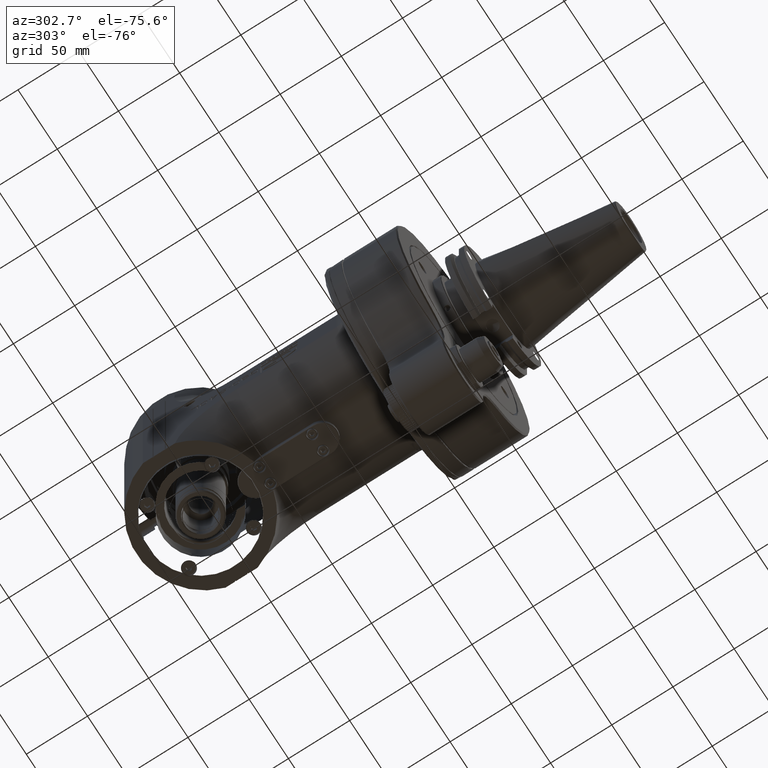
[diagram: clean part render]
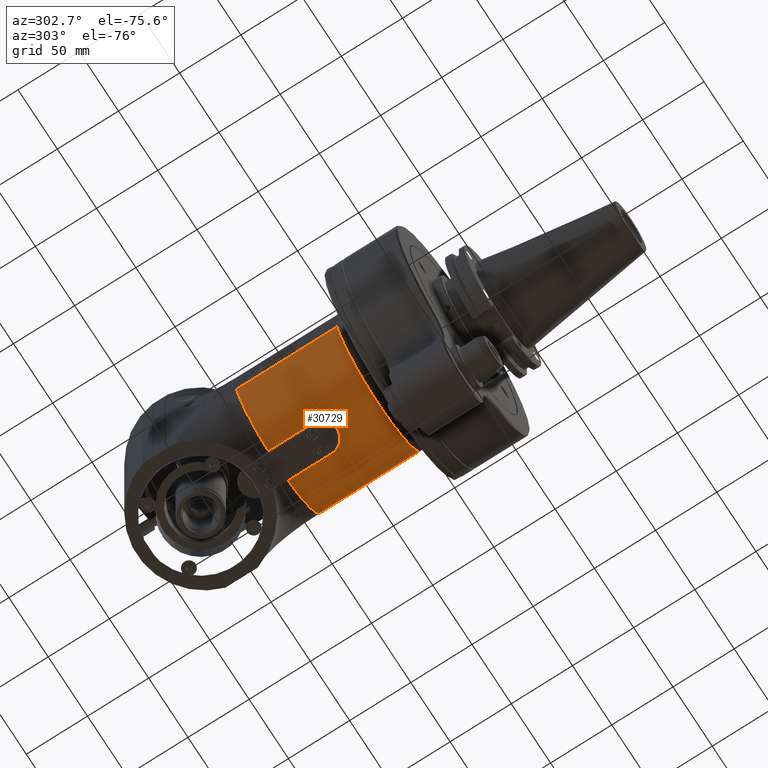
[diagram: same view with one face highlighted and labeled with its STEP entity id]
A machine part, auxiliary view. The second image highlights one B-rep face of the part: STEP entity #30729.
In plain terms, the highlighted cylindrical surface (partial cylindrical patch) has radius 55 mm, axis along (0, 1, -0).
Its self-contained STEP definition (entity closure, byte-faithful):
#329=B_SPLINE_CURVE_WITH_KNOTS('',3,(#46883,#46884,#46885,#46886,#46887,
#46888,#46889,#46890,#46891,#46892,#46893,#46894,#46895,#46896,#46897,#46898,
#46899,#46900,#46901,#46902,#46903,#46904,#46905,#46906,#46907,#46908,#46909,
#46910,#46911,#46912,#46913,#46914,#46915,#46916,#46917,#46918,#46919,#46920,
#46921,#46922,#46923,#46924,#46925,#46926,#46927,#46928,#46929,#46930,#46931,
#46932,#46933,#46934,#46935,#46936,#46937,#46938,#46939,#46940,#46941,#46942,
#46943,#46944,#46945,#46946,#46947,#46948,#46949,#46950,#46951,#46952,#46953,
#46954,#46955,#46956,#46957,#46958,#46959,#46960,#46961,#46962,#46963,#46964,
#46965,#46966,#46967,#46968,#46969,#46970,#46971,#46972,#46973,#46974,#46975,
#46976,#46977,#46978,#46979,#46980,#46981,#46982,#46983,#46984,#46985,#46986,
#46987,#46988,#46989,#46990,#46991,#46992,#46993,#46994,#46995,#46996,#46997,
#46998,#46999,#47000,#47001,#47002,#47003,#47004,#47005,#47006,#47007,#47008,
#47009,#47010,#47011,#47012,#47013,#47014,#47015,#47016,#47017,#47018,#47019,
#47020,#47021,#47022,#47023,#47024,#47025,#47026,#47027,#47028,#47029,#47030,
#47031,#47032,#47033,#47034,#47035,#47036,#47037,#47038,#47039,#47040,#47041,
#47042,#47043,#47044,#47045,#47046,#47047,#47048,#47049,#47050,#47051,#47052,
#47053,#47054,#47055,#47056,#47057,#47058,#47059,#47060,#47061,#47062,#47063,
#47064,#47065,#47066,#47067,#47068,#47069,#47070,#47071,#47072,#47073,#47074,
#47075,#47076,#47077,#47078,#47079,#47080,#47081),.UNSPECIFIED.,.F.,.F.,
(4,3,3,3,3,3,3,3,3,3,3,3,3,3,3,3,3,3,3,3,3,3,3,3,3,3,3,3,3,3,3,3,3,3,3,
3,3,3,3,3,3,3,3,3,3,3,3,3,3,3,3,3,3,3,3,3,3,3,3,3,3,3,3,3,3,3,4),(0.,0.01515151515152,
0.03030303030303,0.04545454545455,0.06060606060606,0.07575757575758,0.09090909090909,
0.1060606060606,0.1212121212121,0.1363636363636,0.1515151515152,0.1666666666667,
0.1818181818182,0.1969696969697,0.2121212121212,0.2272727272727,0.2424242424242,
0.2575757575758,0.2727272727273,0.2878787878788,0.3030303030303,0.3181818181818,
0.3333333333333,0.3484848484848,0.3636363636364,0.3787878787879,0.3939393939394,
0.4090909090909,0.4242424242424,0.4393939393939,0.4545454545455,0.469696969697,
0.4848484848485,0.5,0.5151515151515,0.530303030303,0.5454545454545,0.5606060606061,
0.5757575757576,0.5909090909091,0.6060606060606,0.6212121212121,0.6363636363636,
0.6515151515152,0.6666666666667,0.6818181818182,0.6969696969697,0.7121212121212,
0.7272727272727,0.7424242424242,0.7575757575758,0.7727272727273,0.7878787878788,
0.8030303030303,0.8181818181818,0.8333333333333,0.8484848484848,0.8636363636364,
0.8787878787879,0.8939393939394,0.9090909090909,0.9242424242424,0.9393939393939,
0.9545454545455,0.969696969697,0.9848484848485,1.),.UNSPECIFIED.);
#671=CYLINDRICAL_SURFACE('',#32766,55.);
#1783=LINE('',#46328,#4694);
#2020=LINE('',#46857,#4931);
#2023=LINE('',#46874,#4934);
#2026=LINE('',#46882,#4937);
#4694=VECTOR('',#36356,82.);
#4931=VECTOR('',#36637,82.);
#4934=VECTOR('',#36660,36.5);
#4937=VECTOR('',#36667,36.5);
#7561=FACE_OUTER_BOUND('',#9415,.T.);
#9415=EDGE_LOOP('',(#21362,#21363,#21364,#21365,#21366,#21367,#21368,#21369));
#11420=CIRCLE('',#32764,55.);
#11421=CIRCLE('',#32767,55.);
#11422=CIRCLE('',#32768,55.);
#12834=VERTEX_POINT('',#46325);
#12835=VERTEX_POINT('',#46327);
#13067=VERTEX_POINT('',#46854);
#13068=VERTEX_POINT('',#46856);
#13070=VERTEX_POINT('',#46866);
#13072=VERTEX_POINT('',#46873);
#13074=VERTEX_POINT('',#46879);
#13075=VERTEX_POINT('',#46881);
#16012=EDGE_CURVE('',#12835,#12834,#1783,.T.);
#16258=EDGE_CURVE('',#13067,#13068,#2020,.T.);
#16265=EDGE_CURVE('',#13070,#13068,#11420,.T.);
#16266=EDGE_CURVE('',#13072,#13070,#2023,.T.);
#16269=EDGE_CURVE('',#12834,#13074,#11421,.T.);
#16270=EDGE_CURVE('',#13075,#13074,#2026,.T.);
#16271=EDGE_CURVE('',#13072,#13075,#329,.T.);
#16272=EDGE_CURVE('',#12835,#13067,#11422,.T.);
#21362=ORIENTED_EDGE('',*,*,#16269,.T.);
#21363=ORIENTED_EDGE('',*,*,#16270,.F.);
#21364=ORIENTED_EDGE('',*,*,#16271,.F.);
#21365=ORIENTED_EDGE('',*,*,#16266,.T.);
#21366=ORIENTED_EDGE('',*,*,#16265,.T.);
#21367=ORIENTED_EDGE('',*,*,#16258,.F.);
#21368=ORIENTED_EDGE('',*,*,#16272,.F.);
#21369=ORIENTED_EDGE('',*,*,#16012,.T.);
#30729=ADVANCED_FACE('',(#7561),#671,.T.);
#32764=AXIS2_PLACEMENT_3D('',#46871,#36656,#36657);
#32766=AXIS2_PLACEMENT_3D('',#46878,#36663,#36664);
#32767=AXIS2_PLACEMENT_3D('',#46880,#36665,#36666);
#32768=AXIS2_PLACEMENT_3D('',#47082,#36668,#36669);
#36356=DIRECTION('',(0.,1.,0.));
#36637=DIRECTION('',(0.,1.,0.));
#36656=DIRECTION('center_axis',(0.,-1.,0.));
#36657=DIRECTION('ref_axis',(0.218181818181793,0.,-0.97590813820507));
#36660=DIRECTION('',(0.,1.,0.));
#36663=DIRECTION('center_axis',(0.,1.,0.));
#36664=DIRECTION('ref_axis',(1.,0.,0.));
#36665=DIRECTION('center_axis',(0.,-1.,0.));
#36666=DIRECTION('ref_axis',(-0.954545454545451,0.,-0.298065387468285));
#36667=DIRECTION('',(0.,1.,0.));
#36668=DIRECTION('center_axis',(0.,-1.,0.));
#36669=DIRECTION('ref_axis',(-0.954545454545451,0.,-0.298065387468285));
#46325=CARTESIAN_POINT('',(-52.5,140.,-16.39359631076));
#46327=CARTESIAN_POINT('',(-52.5,58.,-16.39359631076));
#46328=CARTESIAN_POINT('',(-52.5,58.,-16.39359631075));
#46854=CARTESIAN_POINT('',(52.5,58.,-16.39359631076));
#46856=CARTESIAN_POINT('',(52.5,140.,-16.39359631075));
#46857=CARTESIAN_POINT('',(52.5,58.,-16.39359631076));
#46866=CARTESIAN_POINT('',(12.,140.,-53.67494760128));
#46871=CARTESIAN_POINT('Origin',(0.,140.,0.));
#46873=CARTESIAN_POINT('',(12.,103.5,-53.67494760128));
#46874=CARTESIAN_POINT('',(12.,103.5,-53.67494760128));
#46878=CARTESIAN_POINT('Origin',(0.,-10.15,0.));
#46879=CARTESIAN_POINT('',(-12.,140.,-53.67494760128));
#46880=CARTESIAN_POINT('Origin',(0.,140.,0.));
#46881=CARTESIAN_POINT('',(-12.,103.5,-53.67494760128));
#46882=CARTESIAN_POINT('',(-12.,103.5,-53.67494760128));
#46883=CARTESIAN_POINT('Ctrl Pts',(12.,103.5,-53.67494760128));
#46884=CARTESIAN_POINT('Ctrl Pts',(12.,103.3115353774,-53.67494760128));
#46885=CARTESIAN_POINT('Ctrl Pts',(11.9955647551724,103.123262035307,-53.67593908754));
#46886=CARTESIAN_POINT('Ctrl Pts',(11.9866935819693,102.935042504275,-53.6779207586517));
#46887=CARTESIAN_POINT('Ctrl Pts',(11.9778224087662,102.746822973243,-53.6799024297633));
#46888=CARTESIAN_POINT('Ctrl Pts',(11.9645066822098,102.558657496437,-53.6828742857267));
#46889=CARTESIAN_POINT('Ctrl Pts',(11.9467679145418,102.37095775275,-53.686820881815));
#46890=CARTESIAN_POINT('Ctrl Pts',(11.9290291468737,102.183258009063,-53.6907674779033));
#46891=CARTESIAN_POINT('Ctrl Pts',(11.9068746995151,101.996023322979,-53.6956888141167));
#46892=CARTESIAN_POINT('Ctrl Pts',(11.8802856076066,101.809197267067,-53.7015718008467));
#46893=CARTESIAN_POINT('Ctrl Pts',(11.8536965156981,101.622371211154,-53.7074547875767));
#46894=CARTESIAN_POINT('Ctrl Pts',(11.8226655061641,101.435954843217,-53.7142994248233));
#46895=CARTESIAN_POINT('Ctrl Pts',(11.787242981188,101.250354938566,-53.722070910405));
#46896=CARTESIAN_POINT('Ctrl Pts',(11.7518204562118,101.064755033915,-53.7298423959867));
#46897=CARTESIAN_POINT('Ctrl Pts',(11.7120127424498,100.879970317272,-53.7385407299033));
#46898=CARTESIAN_POINT('Ctrl Pts',(11.6678022282166,100.696004428815,-53.7481384902167));
#46899=CARTESIAN_POINT('Ctrl Pts',(11.6235917139835,100.512038540359,-53.75773625053));
#46900=CARTESIAN_POINT('Ctrl Pts',(11.5749739473286,100.328892668049,-53.76823343724));
#46901=CARTESIAN_POINT('Ctrl Pts',(11.5219976489007,100.146856671908,-53.7795832094183));
#46902=CARTESIAN_POINT('Ctrl Pts',(11.4690213504729,99.9648206757672,-53.7909329815967));
#46903=CARTESIAN_POINT('Ctrl Pts',(11.4116875780306,99.7838940997012,-53.8031353392433));
#46904=CARTESIAN_POINT('Ctrl Pts',(11.3500427839046,99.6042935424322,-53.8161363236283));
#46905=CARTESIAN_POINT('Ctrl Pts',(11.2883979897786,99.4246929851634,-53.8291373080133));
#46906=CARTESIAN_POINT('Ctrl Pts',(11.2224442549425,99.2464178748995,-53.8429369191367));
#46907=CARTESIAN_POINT('Ctrl Pts',(11.1521830290583,99.0695582966949,-53.8574861434017));
#46908=CARTESIAN_POINT('Ctrl Pts',(11.081921803174,98.8926987184902,-53.8720353676666));
#46909=CARTESIAN_POINT('Ctrl Pts',(11.0073482418248,98.7172564925865,-53.8873342050733));
#46910=CARTESIAN_POINT('Ctrl Pts',(10.9286001292907,98.5436203521052,-53.9032995206632));
#46911=CARTESIAN_POINT('Ctrl Pts',(10.8498520167562,98.3699842116227,-53.9192648362533));
#46912=CARTESIAN_POINT('Ctrl Pts',(10.7669353411129,98.1981514881317,-53.9358966300267));
#46913=CARTESIAN_POINT('Ctrl Pts',(10.6798256094119,98.0281333210184,-53.9531400842684));
#46914=CARTESIAN_POINT('Ctrl Pts',(10.5927158777116,97.8581151539063,-53.9703835385101));
#46915=CARTESIAN_POINT('Ctrl Pts',(10.5014067310483,97.689914822998,-53.98823865322));
#46916=CARTESIAN_POINT('Ctrl Pts',(10.406089693927,97.5239396520829,-54.006604200615));
#46917=CARTESIAN_POINT('Ctrl Pts',(10.3107726568056,97.3579644811679,-54.02496974801));
#46918=CARTESIAN_POINT('Ctrl Pts',(10.2114526533978,97.1942115475116,-54.04384572809));
#46919=CARTESIAN_POINT('Ctrl Pts',(10.1081605378452,97.0327679382019,-54.06315834782));
#46920=CARTESIAN_POINT('Ctrl Pts',(10.0048684222926,96.8713243288923,-54.08247096755));
#46921=CARTESIAN_POINT('Ctrl Pts',(9.89760162015309,96.7121918307464,-54.10222022693));
#46922=CARTESIAN_POINT('Ctrl Pts',(9.78650124831329,96.5556214592836,-54.1223095711667));
#46923=CARTESIAN_POINT('Ctrl Pts',(9.67540087647349,96.3990510878208,-54.1423989154033));
#46924=CARTESIAN_POINT('Ctrl Pts',(9.56046647456537,96.2450430585659,-54.1628283444967));
#46925=CARTESIAN_POINT('Ctrl Pts',(9.44187916480065,96.093859450611,-54.183493038355));
#46926=CARTESIAN_POINT('Ctrl Pts',(9.32329185503592,95.9426758426562,-54.2041577322133));
#46927=CARTESIAN_POINT('Ctrl Pts',(9.20105325612541,95.7943153809754,-54.2250576908367));
#46928=CARTESIAN_POINT('Ctrl Pts',(9.07527866805268,95.6489289203837,-54.2460995565316));
#46929=CARTESIAN_POINT('Ctrl Pts',(8.94950407997995,95.5035424597919,-54.2671414222266));
#46930=CARTESIAN_POINT('Ctrl Pts',(8.82019392492525,95.36112971325,-54.2883251949932));
#46931=CARTESIAN_POINT('Ctrl Pts',(8.68744437052148,95.2218172097317,-54.3095600268415));
#46932=CARTESIAN_POINT('Ctrl Pts',(8.55469481611684,95.0825047062125,-54.33079485869));
#46933=CARTESIAN_POINT('Ctrl Pts',(8.41850339640546,94.9462948395042,-54.3520807496201));
#46934=CARTESIAN_POINT('Ctrl Pts',(8.27912826651905,94.8134566629456,-54.3733025955418));
#46935=CARTESIAN_POINT('Ctrl Pts',(8.13975313663357,94.6806184863877,-54.3945244414634));
#46936=CARTESIAN_POINT('Ctrl Pts',(7.99719378046616,94.5511523486354,-54.4156822423767));
#46937=CARTESIAN_POINT('Ctrl Pts',(7.85176546117121,94.4253220915143,-54.4366584127134));
#46938=CARTESIAN_POINT('Ctrl Pts',(7.70633714187627,94.2994918343932,-54.45763458305));
#46939=CARTESIAN_POINT('Ctrl Pts',(7.55804378378742,94.1772929976855,-54.47842912281));
#46940=CARTESIAN_POINT('Ctrl Pts',(7.40692686628104,94.0587376692751,-54.4989672782633));
#46941=CARTESIAN_POINT('Ctrl Pts',(7.25580994877466,93.9401823408648,-54.5195054337167));
#46942=CARTESIAN_POINT('Ctrl Pts',(7.10186702300023,93.8252738092495,-54.5397872048633));
#46943=CARTESIAN_POINT('Ctrl Pts',(6.94534048649482,93.7141814074317,-54.55971265986));
#46944=CARTESIAN_POINT('Ctrl Pts',(6.7888139499894,93.6030890056139,-54.5796381148567));
#46945=CARTESIAN_POINT('Ctrl Pts',(6.62970337658205,93.4958130725764,-54.5992072537033));
#46946=CARTESIAN_POINT('Ctrl Pts',(6.46829337969638,93.3925185751259,-54.6183227566917));
#46947=CARTESIAN_POINT('Ctrl Pts',(6.3068833828107,93.2892240776754,-54.63743825968));
#46948=CARTESIAN_POINT('Ctrl Pts',(6.14317618083984,93.1899077666965,-54.65610012681));
#46949=CARTESIAN_POINT('Ctrl Pts',(5.97725190460928,93.0945946898333,-54.6742394521317));
#46950=CARTESIAN_POINT('Ctrl Pts',(5.81132762837872,92.9992816129702,-54.6923787774533));
#46951=CARTESIAN_POINT('Ctrl Pts',(5.6431833908345,92.9079766526195,-54.7099955609666));
#46952=CARTESIAN_POINT('Ctrl Pts',(5.47321561626804,92.8208656334964,-54.7269943521282));
#46953=CARTESIAN_POINT('Ctrl Pts',(5.30324784170045,92.7337546143726,-54.74399314329));
#46954=CARTESIAN_POINT('Ctrl Pts',(5.13145976987022,92.6508312577577,-54.7603739421));
#46955=CARTESIAN_POINT('Ctrl Pts',(4.95785577981075,92.5720694517856,-54.7760866260684));
#46956=CARTESIAN_POINT('Ctrl Pts',(4.78425178975241,92.4933076458141,-54.7917993100367));
#46957=CARTESIAN_POINT('Ctrl Pts',(4.60882915640438,92.4187134964458,-54.8068438791634));
#46958=CARTESIAN_POINT('Ctrl Pts',(4.43197726091076,92.3484271262405,-54.821141702435));
#46959=CARTESIAN_POINT('Ctrl Pts',(4.25512536541714,92.2781407560351,-54.8354395257067));
#46960=CARTESIAN_POINT('Ctrl Pts',(4.07684604868415,92.2121572735253,-54.8489906031233));
#46961=CARTESIAN_POINT('Ctrl Pts',(3.89722715292154,92.1504792824309,-54.8617500679533));
#46962=CARTESIAN_POINT('Ctrl Pts',(3.71760825715893,92.0888012913365,-54.8745095327833));
#46963=CARTESIAN_POINT('Ctrl Pts',(3.5366491801465,92.0314309451464,-54.8864773850267));
#46964=CARTESIAN_POINT('Ctrl Pts',(3.3545691118579,91.9784173798141,-54.89760346385));
#46965=CARTESIAN_POINT('Ctrl Pts',(3.17248904356929,91.9254038144819,-54.9087295426733));
#46966=CARTESIAN_POINT('Ctrl Pts',(2.9892875680218,91.8767480104989,-54.9190138480767));
#46967=CARTESIAN_POINT('Ctrl Pts',(2.80525205083545,91.8324997993879,-54.9284130567367));
#46968=CARTESIAN_POINT('Ctrl Pts',(2.6212165336491,91.788251588277,-54.9378122653967));
#46969=CARTESIAN_POINT('Ctrl Pts',(2.43634796981666,91.748407174147,-54.9463263773133));
#46970=CARTESIAN_POINT('Ctrl Pts',(2.25069066919895,91.7129566255324,-54.9539297185533));
#46971=CARTESIAN_POINT('Ctrl Pts',(2.06503336858002,91.6775060769176,-54.9615330597933));
#46972=CARTESIAN_POINT('Ctrl Pts',(1.87858646221493,91.646453757166,-54.9682256303567));
#46973=CARTESIAN_POINT('Ctrl Pts',(1.69167142396979,91.6198380569403,-54.9739779149484));
#46974=CARTESIAN_POINT('Ctrl Pts',(1.50475638572589,91.5932223567148,-54.97973019954));
#46975=CARTESIAN_POINT('Ctrl Pts',(1.31737389572181,91.5710386946132,-54.98454219816));
#46976=CARTESIAN_POINT('Ctrl Pts',(1.12955363474753,91.5532804257307,-54.9883997638267));
#46977=CARTESIAN_POINT('Ctrl Pts',(0.941733373773249,91.5355221568483,-54.9922573294933));
#46978=CARTESIAN_POINT('Ctrl Pts',(0.753474791577493,91.5221949034862,-54.9951604622067));
#46979=CARTESIAN_POINT('Ctrl Pts',(0.565165575871596,91.5133162270856,-54.9970961767283));
#46980=CARTESIAN_POINT('Ctrl Pts',(0.376856360165699,91.504437550685,-54.99903189125));
#46981=CARTESIAN_POINT('Ctrl Pts',(0.18849677590282,91.5000007031426,-55.00000018758));
#46982=CARTESIAN_POINT('Ctrl Pts',(4.47684744535252E-5,91.5000000000835,
-54.999999999985));
#46983=CARTESIAN_POINT('Ctrl Pts',(-0.188407238953918,91.4999992970245,
-54.99999981239));
#46984=CARTESIAN_POINT('Ctrl Pts',(-0.376951511197127,91.5044388464113,
-54.99903114087));
#46985=CARTESIAN_POINT('Ctrl Pts',(-0.565368213318541,91.5133257830469,
-54.99709409399));
#46986=CARTESIAN_POINT('Ctrl Pts',(-0.753784915439954,91.5222127196825,
-54.99515704711));
#46987=CARTESIAN_POINT('Ctrl Pts',(-0.942074148826391,91.5355487611309,
-54.99225162487));
#46988=CARTESIAN_POINT('Ctrl Pts',(-1.12990797910333,91.5533139340335,-54.9883924838583));
#46989=CARTESIAN_POINT('Ctrl Pts',(-1.31774180938026,91.5710791069361,-54.9845333428467));
#46990=CARTESIAN_POINT('Ctrl Pts',(-1.50512065591367,91.5932677930659,-54.9797204830634));
#46991=CARTESIAN_POINT('Ctrl Pts',(-1.69207257085049,91.6198951850173,-54.9739655693017));
#46992=CARTESIAN_POINT('Ctrl Pts',(-1.87902448578854,91.6465225769689,-54.96821065554));
#46993=CARTESIAN_POINT('Ctrl Pts',(-2.06554853287263,91.6775954168822,-54.9615136878));
#46994=CARTESIAN_POINT('Ctrl Pts',(-2.25124442239128,91.71306237606,-54.9539070362683));
#46995=CARTESIAN_POINT('Ctrl Pts',(-2.43694031190871,91.7485293352376,-54.9463003847366));
#46996=CARTESIAN_POINT('Ctrl Pts',(-2.62180927262429,91.7883842378845,-54.9377840494133));
#46997=CARTESIAN_POINT('Ctrl Pts',(-2.80584420219304,91.8326421880093,-54.92838281174));
#46998=CARTESIAN_POINT('Ctrl Pts',(-2.98987913176179,91.8769001381342,-54.9189815740667));
#46999=CARTESIAN_POINT('Ctrl Pts',(-3.17307886941757,91.9255654961904,-54.9086954340433));
#47000=CARTESIAN_POINT('Ctrl Pts',(-3.35515624891353,91.978588344071,-54.89756758314));
#47001=CARTESIAN_POINT('Ctrl Pts',(-3.53723362840947,92.0316111919516,-54.8864397322367));
#47002=CARTESIAN_POINT('Ctrl Pts',(-3.71818908046703,92.0889905538699,-54.8744701704533));
#47003=CARTESIAN_POINT('Ctrl Pts',(-3.89780358710484,92.1506772362245,-54.861709116615));
#47004=CARTESIAN_POINT('Ctrl Pts',(-4.07741809374264,92.2123639185791,-54.8489480627767));
#47005=CARTESIAN_POINT('Ctrl Pts',(-4.25569226087518,92.2783557457811,-54.8353955168833));
#47006=CARTESIAN_POINT('Ctrl Pts',(-4.43253968527787,92.348650667366,-54.821096230725));
#47007=CARTESIAN_POINT('Ctrl Pts',(-4.60938710968056,92.418945588951,-54.8067969445667));
#47008=CARTESIAN_POINT('Ctrl Pts',(-4.78480595198799,92.493548491855,-54.7917509181434));
#47009=CARTESIAN_POINT('Ctrl Pts',(-4.95840842323432,92.5723201955585,-54.7760366027768));
#47010=CARTESIAN_POINT('Ctrl Pts',(-5.13201089448179,92.6510918992625,-54.76032228741));
#47011=CARTESIAN_POINT('Ctrl Pts',(-5.30379968940873,92.7340263635464,-54.7439396831));
#47012=CARTESIAN_POINT('Ctrl Pts',(-5.47376787941341,92.8211486946254,-54.7269391177916));
#47013=CARTESIAN_POINT('Ctrl Pts',(-5.64373606941698,92.9082710257037,-54.7099385524833));
#47014=CARTESIAN_POINT('Ctrl Pts',(-5.8118803891558,92.9995875518746,-54.6923200261766));
#47015=CARTESIAN_POINT('Ctrl Pts',(-5.97779917750491,93.0949090828854,-54.67417961884));
#47016=CARTESIAN_POINT('Ctrl Pts',(-6.14371796585401,93.1902306138962,-54.6560392115033));
#47017=CARTESIAN_POINT('Ctrl Pts',(-6.30741413003192,93.2895522426715,-54.6373769231367));
#47018=CARTESIAN_POINT('Ctrl Pts',(-6.46880455725157,93.3928457219611,-54.618262216955));
#47019=CARTESIAN_POINT('Ctrl Pts',(-6.63019498447121,93.4961392012506,-54.5991475107733));
#47020=CARTESIAN_POINT('Ctrl Pts',(-6.78927775153005,93.6034073343726,-54.5795803867767));
#47021=CARTESIAN_POINT('Ctrl Pts',(-6.94579214687517,93.7145019824024,-54.559655162515));
#47022=CARTESIAN_POINT('Ctrl Pts',(-7.10230654222029,93.8255966304322,-54.5397299382533));
#47023=CARTESIAN_POINT('Ctrl Pts',(-7.2562527472475,93.9405177008185,-54.5194466137267));
#47024=CARTESIAN_POINT('Ctrl Pts',(-7.40739263227521,94.0591030939156,-54.49890397422));
#47025=CARTESIAN_POINT('Ctrl Pts',(-7.55853251730292,94.1776884870127,-54.4783613347133));
#47026=CARTESIAN_POINT('Ctrl Pts',(-7.70686684259471,94.2999371624018,-54.4575593802267));
#47027=CARTESIAN_POINT('Ctrl Pts',(-7.85222991495879,94.425723975841,-54.4365914194));
#47028=CARTESIAN_POINT('Ctrl Pts',(-7.99759298732286,94.5515107892803,-54.4156234585734));
#47029=CARTESIAN_POINT('Ctrl Pts',(-8.13998424059774,94.6808364412236,-54.3944894914068));
#47030=CARTESIAN_POINT('Ctrl Pts',(-8.27920380841774,94.8135286624153,-54.3732910931351));
#47031=CARTESIAN_POINT('Ctrl Pts',(-8.41842337623866,94.9462208836078,-54.3520926948634));
#47032=CARTESIAN_POINT('Ctrl Pts',(-8.5544721801911,95.0822786042456,-54.3308298654866));
#47033=CARTESIAN_POINT('Ctrl Pts',(-8.68722076591912,95.2215825567816,-54.3095957945182));
#47034=CARTESIAN_POINT('Ctrl Pts',(-8.81996935164627,95.3608865093166,-54.2883617235499));
#47035=CARTESIAN_POINT('Ctrl Pts',(-8.94941434925563,95.5034400018782,-54.26715641099));
#47036=CARTESIAN_POINT('Ctrl Pts',(-9.07524490274738,95.6488898902666,-54.2461052053967));
#47037=CARTESIAN_POINT('Ctrl Pts',(-9.20107545623912,95.794339778655,-54.2250539998033));
#47038=CARTESIAN_POINT('Ctrl Pts',(-9.32329636414159,95.9426819471539,-54.2041569011767));
#47039=CARTESIAN_POINT('Ctrl Pts',(-9.44187069609312,96.093848654108,-54.183494514085));
#47040=CARTESIAN_POINT('Ctrl Pts',(-9.56044502804465,96.2450153610621,-54.1628321269933));
#47041=CARTESIAN_POINT('Ctrl Pts',(-9.67536987601276,96.399008730883,-54.1424044514367));
#47042=CARTESIAN_POINT('Ctrl Pts',(-9.78647338971584,96.5555821991773,-54.1223146086));
#47043=CARTESIAN_POINT('Ctrl Pts',(-9.89757690341892,96.7121556674715,-54.1022247657633));
#47044=CARTESIAN_POINT('Ctrl Pts',(-10.0048589277353,96.8713095262591,-54.0824727556467));
#47045=CARTESIAN_POINT('Ctrl Pts',(-10.108159861787,97.032766881536,-54.06315847422));
#47046=CARTESIAN_POINT('Ctrl Pts',(-10.2114607958388,97.194224236813,-54.0438441927933));
#47047=CARTESIAN_POINT('Ctrl Pts',(-10.3107836953421,97.3579829909595,-54.0249676400567));
#47048=CARTESIAN_POINT('Ctrl Pts',(-10.4061007589116,97.5239589195372,-54.0066020685917));
#47049=CARTESIAN_POINT('Ctrl Pts',(-10.5014178224811,97.6899348481148,-53.9882364971267));
#47050=CARTESIAN_POINT('Ctrl Pts',(-10.5927241583503,97.8581308462873,-53.9703819069334));
#47051=CARTESIAN_POINT('Ctrl Pts',(-10.6798317421948,98.028145290817,-53.9531388703018));
#47052=CARTESIAN_POINT('Ctrl Pts',(-10.7669393260399,98.1981597353479,-53.93589583367));
#47053=CARTESIAN_POINT('Ctrl Pts',(-10.8498544313201,98.3699893917623,-53.9192643506));
#47054=CARTESIAN_POINT('Ctrl Pts',(-10.9286016740623,98.5436237582602,-53.9032992074649));
#47055=CARTESIAN_POINT('Ctrl Pts',(-11.0073489168039,98.717258124757,-53.8873340643299));
#47056=CARTESIAN_POINT('Ctrl Pts',(-11.0819223018615,98.8926998727546,-53.87203526113));
#47057=CARTESIAN_POINT('Ctrl Pts',(-11.1521838973398,99.0695604823093,-53.8574859636033));
#47058=CARTESIAN_POINT('Ctrl Pts',(-11.222445492818,99.2464210918641,-53.8429366660767));
#47059=CARTESIAN_POINT('Ctrl Pts',(-11.2884000899594,99.4246987652328,-53.8291368742233));
#47060=CARTESIAN_POINT('Ctrl Pts',(-11.3500450401725,99.6043001160181,-53.816135847775));
#47061=CARTESIAN_POINT('Ctrl Pts',(-11.4116899903855,99.7839014668034,-53.8031348213267));
#47062=CARTESIAN_POINT('Ctrl Pts',(-11.4690233041265,99.9648270354638,-53.7909325602833));
#47063=CARTESIAN_POINT('Ctrl Pts',(-11.5219993954984,100.146862673535,-53.779582835215));
#47064=CARTESIAN_POINT('Ctrl Pts',(-11.5749754868702,100.328898311605,-53.7682331101467));
#47065=CARTESIAN_POINT('Ctrl Pts',(-11.6235932443382,100.512044489414,-53.7577359210533));
#47066=CARTESIAN_POINT('Ctrl Pts',(-11.6678036790582,100.696010465969,-53.7481381752583));
#47067=CARTESIAN_POINT('Ctrl Pts',(-11.7120141137782,100.879976442524,-53.7385404294634));
#47068=CARTESIAN_POINT('Ctrl Pts',(-11.7518216918721,101.064761027984,-53.7298421269667));
#47069=CARTESIAN_POINT('Ctrl Pts',(-11.7872440532435,101.250360555717,-53.7220706751834));
#47070=CARTESIAN_POINT('Ctrl Pts',(-11.8226664146151,101.43596008345,-53.7142992234));
#47071=CARTESIAN_POINT('Ctrl Pts',(-11.8536972492431,101.622375824417,-53.70745462233));
#47072=CARTESIAN_POINT('Ctrl Pts',(-11.8802862905096,101.809202065435,-53.7015716497733));
#47073=CARTESIAN_POINT('Ctrl Pts',(-11.9068753317759,101.996028306452,-53.6956886772167));
#47074=CARTESIAN_POINT('Ctrl Pts',(-11.9290298107658,102.183263996019,-53.6907673331733));
#47075=CARTESIAN_POINT('Ctrl Pts',(-11.9467684993423,102.370963940734,-53.6868207516783));
#47076=CARTESIAN_POINT('Ctrl Pts',(-11.9645071879187,102.558663885448,-53.6828741701833));
#47077=CARTESIAN_POINT('Ctrl Pts',(-11.9778227556495,102.746828758381,-53.6799023512367));
#47078=CARTESIAN_POINT('Ctrl Pts',(-11.9866938042502,102.935047220425,-53.6779207090108));
#47079=CARTESIAN_POINT('Ctrl Pts',(-11.9955648528509,103.123265682469,-53.675939066785));
#47080=CARTESIAN_POINT('Ctrl Pts',(-12.,103.3115374902,-53.67494760128));
#47081=CARTESIAN_POINT('Ctrl Pts',(-12.,103.5,-53.67494760128));
#47082=CARTESIAN_POINT('Origin',(0.,58.,0.));